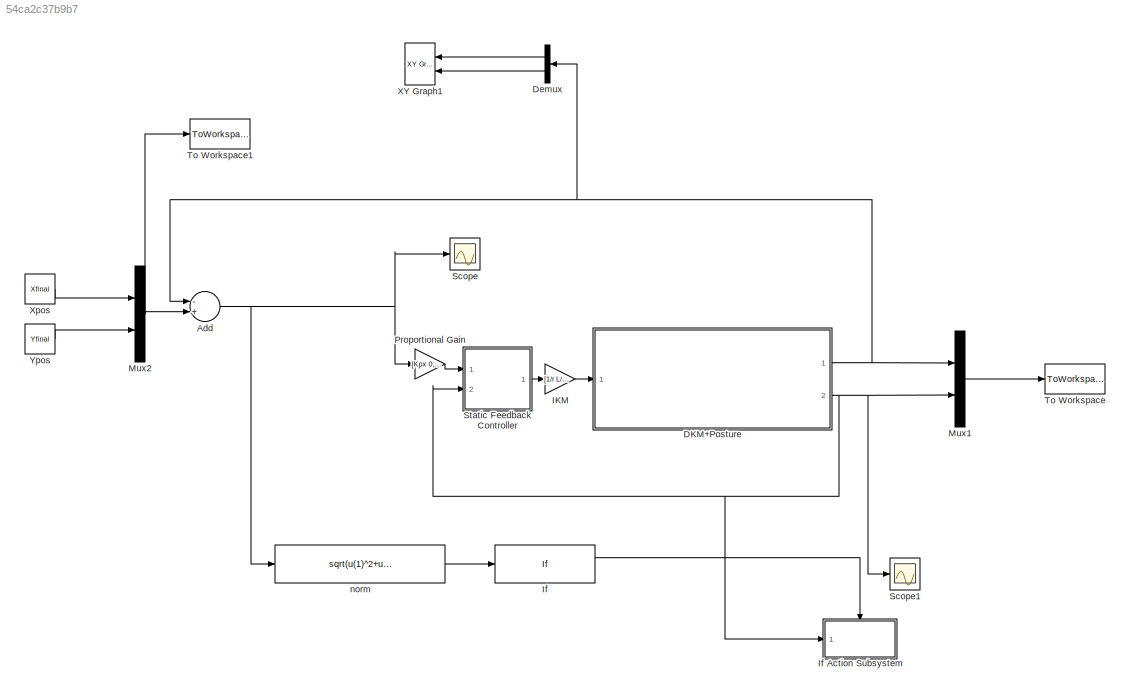
MODEL slx_54ca2c37b9b7
KIND model
CONFIG AbsTol = auto
CONFIG FixedStep = 0.001
CONFIG MaxStep = auto
CONFIG MinStep = auto
CONFIG RelTol = 1e-3
CONFIG SampleTimeConstraint = Unconstrained
CONFIG Solver = ode45
CONFIG SolverMode = Auto
CONFIG SolverName = ode45
CONFIG StartTime = 0.0
CONFIG StopTime = 2
BLOCK [Sum] Add
  InputSameDT = off
  Inputs = -+
  OutDataTypeStr = Inherit: Inherit via internal rule
  Ports = [2, 1]
  SaturateOnIntegerOverflow = off
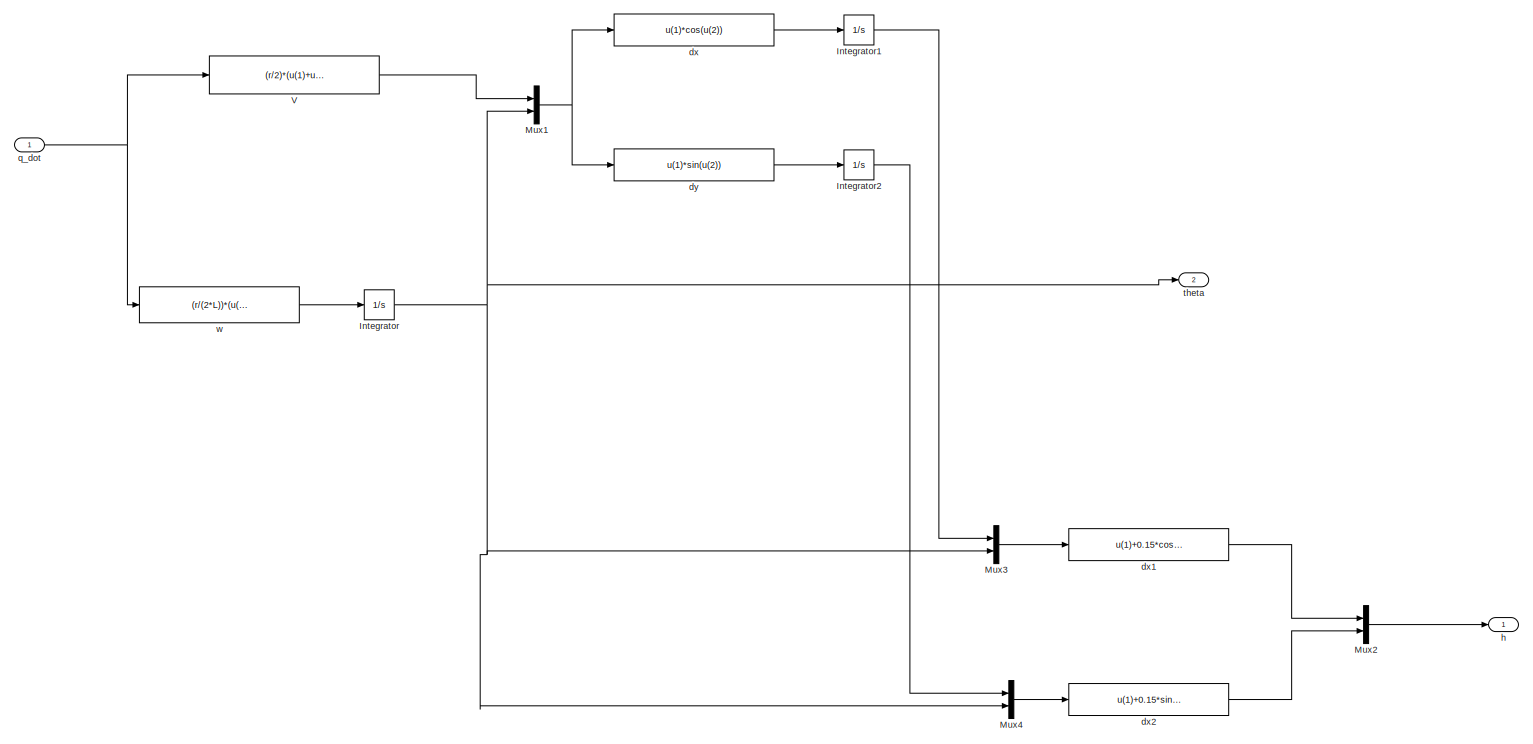
[diagram: DKM+Posture - part 1/1, most of the canvas]
BLOCK [SubSystem] DKM+Posture
  Ports = [1, 2]
  RequestExecContextInheritance = off
  Variant = off
BLOCK [Integrator] DKM+Posture/Integrator
  InitialCondition = pi
  Ports = [1, 1]
BLOCK [Integrator] DKM+Posture/Integrator1
  InitialCondition = 2.45
  Ports = [1, 1]
BLOCK [Integrator] DKM+Posture/Integrator2
  Ports = [1, 1]
BLOCK [Mux] DKM+Posture/Mux1
  DisplayOption = bar
  Inputs = 2
  Ports = [2, 1]
BLOCK [Mux] DKM+Posture/Mux2
  DisplayOption = bar
  Inputs = 2
  Ports = [2, 1]
BLOCK [Mux] DKM+Posture/Mux3
  DisplayOption = bar
  Inputs = 2
  Ports = [2, 1]
BLOCK [Mux] DKM+Posture/Mux4
  DisplayOption = bar
  Inputs = 2
  Ports = [2, 1]
BLOCK [Fcn] DKM+Posture/V
  Expr = (r/2)*(u(1)+u(2))
BLOCK [Fcn] DKM+Posture/dx
  Expr = u(1)*cos(u(2))
BLOCK [Fcn] DKM+Posture/dx1
  Expr = u(1)+0.15*cos(u(2))
BLOCK [Fcn] DKM+Posture/dx2
  Expr = u(1)+0.15*sin(u(2))
BLOCK [Fcn] DKM+Posture/dy
  Expr = u(1)*sin(u(2))
BLOCK [Outport] DKM+Posture/h
  IconDisplay = Port number
BLOCK [Inport] DKM+Posture/q_dot
  IconDisplay = Port number
BLOCK [Outport] DKM+Posture/theta
  IconDisplay = Port number
  Port = 2
BLOCK [Fcn] DKM+Posture/w
  Expr = (r/(2*L))*(u(1)-u(2))
BLOCK [Demux] Demux
  DisplayOption = bar
  Outputs = 2
  Ports = [1, 2]
BLOCK [Gain] IKM
  Gain = [1/r L/r;1/r -L/r]
  Multiplication = Matrix(K*u)
  OutDataTypeStr = Inherit: Inherit via internal rule
  ParamDataTypeStr = Inherit: Inherit via internal rule
  SaturateOnIntegerOverflow = off
BLOCK [If] If
  IfExpression = u1 < 0.1
  Ports = [1, 2]
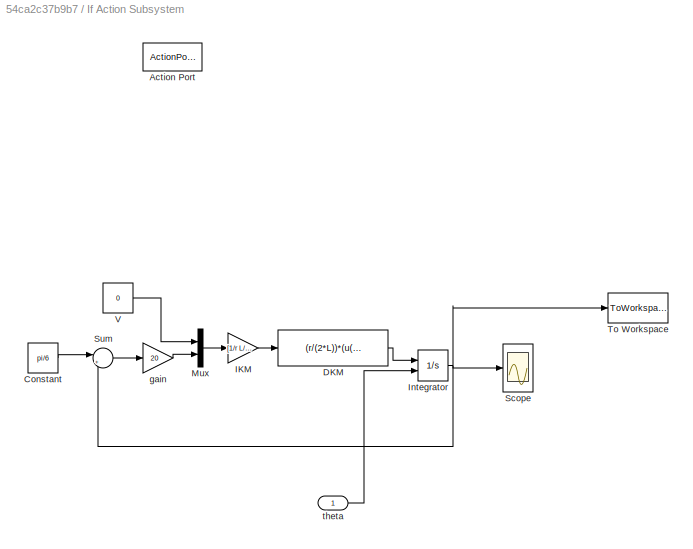
BLOCK [SubSystem] If Action Subsystem
  Ports = [1, 0, 0, 0, 0, 0, 0, 1]
  RequestExecContextInheritance = off
  TreatAsAtomicUnit = on
  Variant = off
BLOCK [ActionPort] If Action Subsystem/Action Port
  ActionType = then
BLOCK [Constant] If Action Subsystem/Constant
  Value = pi/6
BLOCK [Fcn] If Action Subsystem/DKM
  Expr = (r/(2*L))*(u(1)-u(2))
BLOCK [Gain] If Action Subsystem/IKM
  Gain = [1/r L/r;1/r -L/r]
  Multiplication = Matrix(K*u)
  OutDataTypeStr = Inherit: Inherit via internal rule
  ParamDataTypeStr = Inherit: Inherit via internal rule
  SaturateOnIntegerOverflow = off
BLOCK [Integrator] If Action Subsystem/Integrator
  InitialConditionSource = external
  Ports = [2, 1]
BLOCK [Mux] If Action Subsystem/Mux
  DisplayOption = bar
  Inputs = 2
  Ports = [2, 1]
BLOCK [Scope] If Action Subsystem/Scope
  Ports = [1]
  ScopeSpecificationString = C++SS(StrPVP('Open','off'),StrPVP('TimeRange','auto'),StrPVP('TickLabels','OneTimeTick'),StrPVP('ShowLegends','off'),StrPVP('LimitDataPoints','off'),StrPVP('MaxDataPoints','5000'),StrPVP('SaveToWorkspace','off'),StrPVP('SaveName','ScopeData2'),StrPVP('YMin','1.41669'),StrPVP('YMax','2.96036'),StrPVP('BlockParamSampleInput','off'),StrPVP('BlockParamSampleTime','-1'),StrPVP('ZoomMode','on'),StrPVP('...<+578ch>
BLOCK [Sum] If Action Subsystem/Sum
  IconShape = round
  InputSameDT = off
  Inputs = |+-
  OutDataTypeStr = Inherit: Inherit via internal rule
  Ports = [2, 1]
  SaturateOnIntegerOverflow = off
BLOCK [ToWorkspace] If Action Subsystem/To Workspace
  FixptAsFi = on
  MaxDataPoints = inf
  Ports = [1]
  SampleTime = -1
  Save2DSignal = 3-D array (concatenate along third dimension)
  VariableName = thetaop
BLOCK [Constant] If Action Subsystem/V
  Value = 0
BLOCK [Gain] If Action Subsystem/gain
  Gain = 20
  Multiplication = Matrix(K*u)
  OutDataTypeStr = Inherit: Inherit via internal rule
  ParamDataTypeStr = Inherit: Inherit via internal rule
  SaturateOnIntegerOverflow = off
BLOCK [Inport] If Action Subsystem/theta
  IconDisplay = Port number
BLOCK [Mux] Mux1
  DisplayOption = bar
  Inputs = 2
  Ports = [2, 1]
BLOCK [Mux] Mux2
  DisplayOption = bar
  Inputs = 2
  Ports = [2, 1]
BLOCK [Gain] Proportional Gain
  Gain = [Kpx 0;0 Kpy]
  Multiplication = Matrix(K*u)
  OutDataTypeStr = Inherit: Inherit via internal rule
  ParamDataTypeStr = Inherit: Inherit via internal rule
  SaturateOnIntegerOverflow = off
BLOCK [Scope] Scope
  Ports = [1]
  ScopeSpecificationString = C++SS(StrPVP('Open','off'),StrPVP('TimeRange','auto'),StrPVP('TickLabels','OneTimeTick'),StrPVP('ShowLegends','off'),StrPVP('LimitDataPoints','off'),StrPVP('MaxDataPoints','5000'),StrPVP('SaveToWorkspace','off'),StrPVP('SaveName','ScopeData'),StrPVP('YMin','-7.5875'),StrPVP('YMax','5.2875'),StrPVP('BlockParamSampleInput','off'),StrPVP('BlockParamSampleTime','-1'),StrPVP('ZoomMode','on'),StrPVP('Gr...<+575ch>
BLOCK [Scope] Scope1
  Ports = [1]
  ScopeSpecificationString = C++SS(StrPVP('Open','off'),StrPVP('TimeRange','auto'),StrPVP('TickLabels','OneTimeTick'),StrPVP('ShowLegends','off'),StrPVP('LimitDataPoints','off'),StrPVP('MaxDataPoints','5000'),StrPVP('SaveToWorkspace','off'),StrPVP('SaveName','ScopeData1'),StrPVP('YMin','-0.00013'),StrPVP('YMax','0.00007'),StrPVP('BlockParamSampleInput','off'),StrPVP('BlockParamSampleTime','-1'),StrPVP('ZoomMode','on'),StrPVP(...<+581ch>
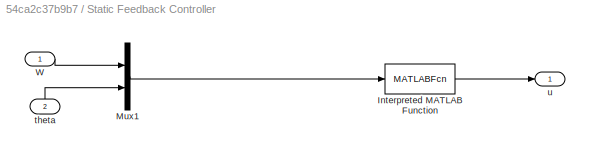
BLOCK [SubSystem] Static Feedback Controller
  Ports = [2, 1]
  RequestExecContextInheritance = off
  Variant = off
BLOCK [MATLABFcn] Static Feedback Controller/Interpreted MATLAB Function
  MATLABFcn = F_invW(u)
  Output1D = off
  OutputSignalType = real
  Ports = [1, 1]
BLOCK [Mux] Static Feedback Controller/Mux1
  DisplayOption = bar
  Inputs = 2
  Ports = [2, 1]
BLOCK [Inport] Static Feedback Controller/W
  IconDisplay = Port number
BLOCK [Inport] Static Feedback Controller/theta
  IconDisplay = Port number
  Port = 2
BLOCK [Outport] Static Feedback Controller/u
  IconDisplay = Port number
BLOCK [ToWorkspace] To Workspace
  FixptAsFi = on
  MaxDataPoints = inf
  Ports = [1]
  SampleTime = -1
  Save2DSignal = 3-D array (concatenate along third dimension)
  VariableName = output
BLOCK [ToWorkspace] To Workspace1
  FixptAsFi = on
  MaxDataPoints = inf
  Ports = [1]
  SampleTime = -1
  Save2DSignal = 3-D array (concatenate along third dimension)
  VariableName = hd
BLOCK [Reference] XY Graph1  REF=simulink/Sinks/XY Graph
  Ports = [2]
  SourceBlock = simulink/Sinks/XY Graph
  SourceType = XY scope.
BLOCK [Constant] Xpos
  Value = Xfinal
BLOCK [Constant] Ypos
  Value = Yfinal
BLOCK [Fcn] norm
  Expr = sqrt(u(1)^2+u(2)^2)
NET Add:1 -> Proportional Gain:1, Scope:1, norm:1
LINE DKM+Posture/Integrator1:1 -> DKM+Posture/Mux3:1
LINE DKM+Posture/Integrator2:1 -> DKM+Posture/Mux4:1
NET DKM+Posture/Integrator:1 -> DKM+Posture/Mux1:2, DKM+Posture/Mux3:2, DKM+Posture/Mux4:2, DKM+Posture/theta:1
NET DKM+Posture/Mux1:1 -> DKM+Posture/dx:1, DKM+Posture/dy:1
LINE DKM+Posture/Mux2:1 -> DKM+Posture/h:1
LINE DKM+Posture/Mux3:1 -> DKM+Posture/dx1:1
LINE DKM+Posture/Mux4:1 -> DKM+Posture/dx2:1
LINE DKM+Posture/V:1 -> DKM+Posture/Mux1:1
LINE DKM+Posture/dx1:1 -> DKM+Posture/Mux2:1
LINE DKM+Posture/dx2:1 -> DKM+Posture/Mux2:2
LINE DKM+Posture/dx:1 -> DKM+Posture/Integrator1:1
LINE DKM+Posture/dy:1 -> DKM+Posture/Integrator2:1
NET DKM+Posture/q_dot:1 -> DKM+Posture/V:1, DKM+Posture/w:1
LINE DKM+Posture/w:1 -> DKM+Posture/Integrator:1
NET DKM+Posture:1 -> Add:1, Demux:1, Mux1:1
NET DKM+Posture:2 -> If Action Subsystem:1, Mux1:2, Scope1:1, Static Feedback Controller:2
LINE Demux:1 -> XY Graph1:1
LINE Demux:2 -> XY Graph1:2
LINE IKM:1 -> DKM+Posture:1
LINE If Action Subsystem/Constant:1 -> If Action Subsystem/Sum:1
LINE If Action Subsystem/DKM:1 -> If Action Subsystem/Integrator:1
LINE If Action Subsystem/IKM:1 -> If Action Subsystem/DKM:1
NET If Action Subsystem/Integrator:1 -> If Action Subsystem/Scope:1, If Action Subsystem/Sum:2, If Action Subsystem/To Workspace:1
LINE If Action Subsystem/Mux:1 -> If Action Subsystem/IKM:1
LINE If Action Subsystem/Sum:1 -> If Action Subsystem/gain:1
LINE If Action Subsystem/V:1 -> If Action Subsystem/Mux:1
LINE If Action Subsystem/gain:1 -> If Action Subsystem/Mux:2
LINE If Action Subsystem/theta:1 -> If Action Subsystem/Integrator:2
LINE If:1 -> If Action Subsystem:ifaction
LINE Mux1:1 -> To Workspace:1
NET Mux2:1 -> Add:2, To Workspace1:1
LINE Proportional Gain:1 -> Static Feedback Controller:1
LINE Static Feedback Controller/Interpreted MATLAB Function:1 -> Static Feedback Controller/u:1
LINE Static Feedback Controller/Mux1:1 -> Static Feedback Controller/Interpreted MATLAB Function:1
LINE Static Feedback Controller/W:1 -> Static Feedback Controller/Mux1:1
LINE Static Feedback Controller/theta:1 -> Static Feedback Controller/Mux1:2
LINE Static Feedback Controller:1 -> IKM:1
LINE Xpos:1 -> Mux2:1
LINE Ypos:1 -> Mux2:2
LINE norm:1 -> If:1
note: NET lines group one-source signal fan-out (src -> all destinations, sorted); 1:1 wires keep LINE
